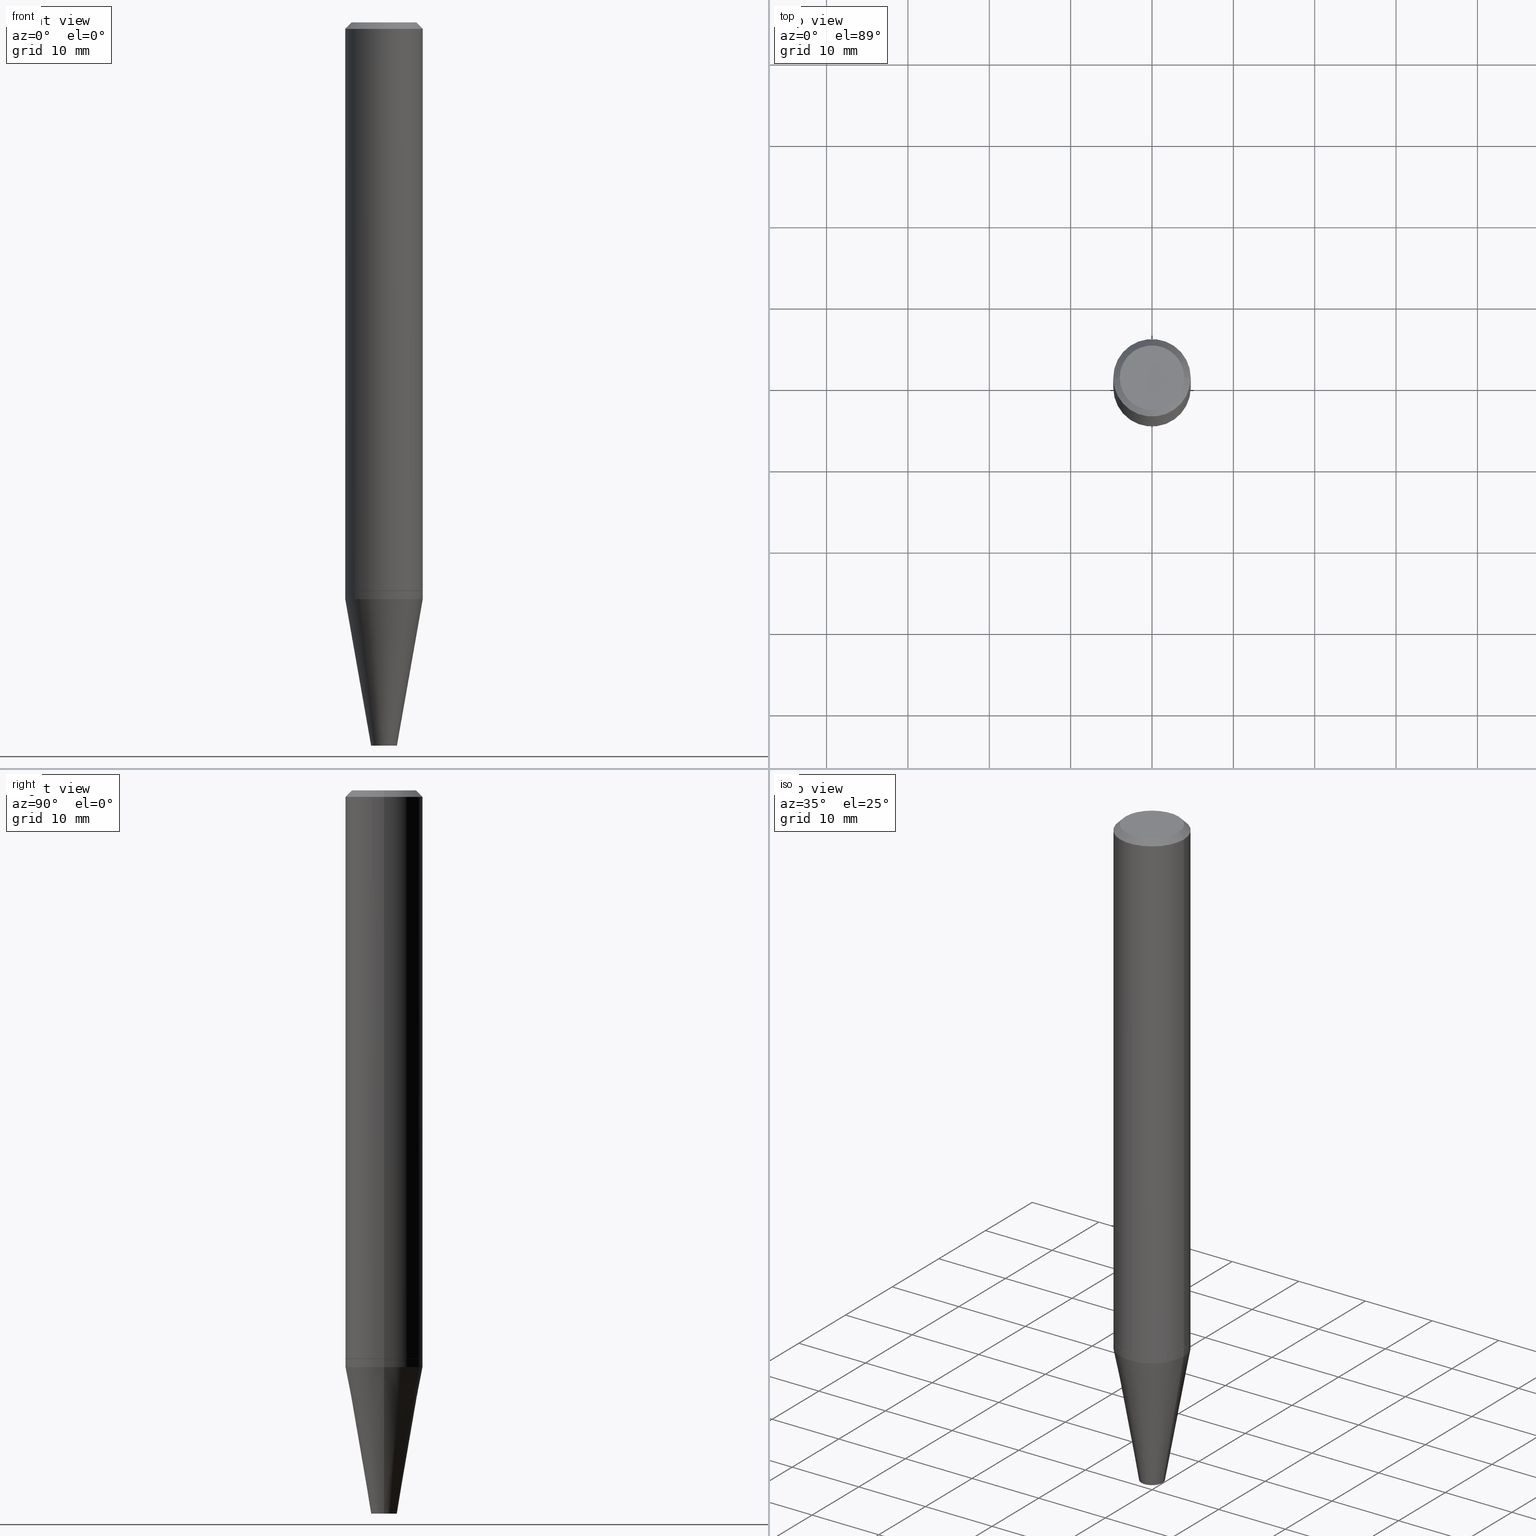
[diagram: canonical four-view strip — front | top / right | iso, engineering-drawing reading convention]
A machine part, canonical four-view strip (front | top / right | iso — engineering-drawing reading convention). The complete STEP part file that produces these views, byte-faithful:
ISO-10303-21;
HEADER;
FILE_DESCRIPTION (( 'STEP AP203' ),
    '1' );
FILE_NAME ('32328.STEP',
    '2024-03-04T15:06:21',
    ( '' ),
    ( '' ),
    'SwSTEP 2.0',
    'SolidWorks 2023',
    '' );
FILE_SCHEMA (( 'CONFIG_CONTROL_DESIGN' ));
ENDSEC;

DATA;
#1 = DIRECTION ( 'NONE',  ( -2.445468806185136597E-29, 3.491481338843145583E-15, 1.000000000000000000 ) ) ;
#2 = ADVANCED_FACE ( 'NONE', ( #217 ), #3, .T. ) ;
#3 = CYLINDRICAL_SURFACE ( 'NONE', #191, 0.1875000000000000278 ) ;
#4 = DIRECTION ( 'NONE',  ( 1.000000000000000000, -6.982962677686261189E-15, 0.000000000000000000 ) ) ;
#5 = VERTEX_POINT ( 'NONE', #61 ) ;
#6 = VECTOR ( 'NONE', #36, 39.37007874015748143 ) ;
#7 = CARTESIAN_POINT ( 'NONE',  ( 0.000000000000000000, 0.000000000000000000, 0.000000000000000000 ) ) ;
#8 = CARTESIAN_POINT ( 'NONE',  ( 8.559140821647976968E-29, -1.222018468595100934E-14, -3.500000000000000000 ) ) ;
#9 = AXIS2_PLACEMENT_3D ( 'NONE', #131, #195, #392 ) ;
#10 = VERTEX_POINT ( 'NONE', #388 ) ;
#11 = ORIENTED_EDGE ( 'NONE', *, *, #46, .T. ) ;
#12 = DIRECTION ( 'NONE',  ( 2.438088387897960049E-29, -3.491481338843145188E-15, -1.000000000000000000 ) ) ;
#13 = AXIS2_PLACEMENT_3D ( 'NONE', #8, #190, #187 ) ;
#14 = ORIENTED_EDGE ( 'NONE', *, *, #321, .F. ) ;
#15 = DIRECTION ( 'NONE',  ( 1.000000000000000000, -6.982962677686269077E-15, 0.000000000000000000 ) ) ;
#16 = PRODUCT_DEFINITION_FORMATION_WITH_SPECIFIED_SOURCE ( 'ANY', '', #246, .NOT_KNOWN. ) ;
#17 = DIRECTION ( 'NONE',  ( 1.000000000000000000, -6.982962677686256455E-15, 0.000000000000000000 ) ) ;
#18 = PERSON_AND_ORGANIZATION ( #372, #305 ) ;
#19 = PLANE ( 'NONE',  #297 ) ;
#20 = COORDINATED_UNIVERSAL_TIME_OFFSET ( 5, 0, .BEHIND. ) ;
#21 = EDGE_CURVE ( 'NONE', #136, #198, #73, .T. ) ;
#22 = AXIS2_PLACEMENT_3D ( 'NONE', #397, #150, #380 ) ;
#23 = SHAPE_DEFINITION_REPRESENTATION ( #178, #129 ) ;
#24 = DIRECTION ( 'NONE',  ( -2.445468806185136597E-29, 3.491481338843145583E-15, 1.000000000000000000 ) ) ;
#25 = LINE ( 'NONE', #281, #221 ) ;
#26 = VECTOR ( 'NONE', #48, 39.37007874015748143 ) ;
#27 = COORDINATED_UNIVERSAL_TIME_OFFSET ( 5, 0, .BEHIND. ) ;
#28 = DIRECTION ( 'NONE',  ( 2.445468806185136597E-29, -3.491481338843145583E-15, -1.000000000000000000 ) ) ;
#29 = LINE ( 'NONE', #379, #179 ) ;
#30 = ORIENTED_EDGE ( 'NONE', *, *, #40, .T. ) ;
#31 = AXIS2_PLACEMENT_3D ( 'NONE', #165, #256, #261 ) ;
#32 = CARTESIAN_POINT ( 'NONE',  ( 0.000000000000000000, 0.000000000000000000, 0.000000000000000000 ) ) ;
#33 = DIRECTION ( 'NONE',  ( 1.000000000000000000, -6.982962677686265922E-15, 0.000000000000000000 ) ) ;
#34 = LINE ( 'NONE', #325, #302 ) ;
#35 = EDGE_CURVE ( 'NONE', #391, #398, #348, .T. ) ;
#36 = DIRECTION ( 'NONE',  ( -2.445468806185136877E-29, 3.491481338843145188E-15, 1.000000000000000000 ) ) ;
#37 = CONICAL_SURFACE ( 'NONE', #93, 0.06250000000000005551, 0.1745329251994259256 ) ;
#38 = ORIENTED_EDGE ( 'NONE', *, *, #77, .T. ) ;
#39 = CARTESIAN_POINT ( 'NONE',  ( 7.642090019328561499E-31, -1.091087918388484350E-16, -0.03125000000000003469 ) ) ;
#40 = EDGE_CURVE ( 'NONE', #293, #352, #127, .T. ) ;
#41 = FACE_OUTER_BOUND ( 'NONE', #169, .T. ) ;
#42 = COORDINATED_UNIVERSAL_TIME_OFFSET ( 5, 0, .BEHIND. ) ;
#43 = CARTESIAN_POINT ( 'NONE',  ( 0.1875000000000000278, -1.105434335795262656E-14, -2.791089772547757253 ) ) ;
#44 = AXIS2_PLACEMENT_3D ( 'NONE', #101, #224, #330 ) ;
#45 = DESIGN_CONTEXT ( 'detailed design', #377, 'design' ) ;
#46 = EDGE_CURVE ( 'NONE', #5, #182, #215, .T. ) ;
#47 = DIRECTION ( 'NONE',  ( 2.438088387897960049E-29, -3.491481338843145188E-15, -1.000000000000000000 ) ) ;
#48 = DIRECTION ( 'NONE',  ( -2.445468806185136877E-29, 3.491481338843145188E-15, 1.000000000000000000 ) ) ;
#49 = ORIENTED_EDGE ( 'NONE', *, *, #250, .F. ) ;
#50 = CARTESIAN_POINT ( 'NONE',  ( -0.1875000000000000278, -8.341038139302364435E-15, -2.750000000000000000 ) ) ;
#51 = DIRECTION ( 'NONE',  ( -2.445468806185136597E-29, 3.491481338843145583E-15, 1.000000000000000000 ) ) ;
#52 = LOCAL_TIME ( 10, 6, 21.00000000000000000, #374 ) ;
#53 = DIRECTION ( 'NONE',  ( -2.445468806185136597E-29, 3.491481338843145583E-15, 1.000000000000000000 ) ) ;
#54 = EDGE_CURVE ( 'NONE', #65, #252, #34, .T. ) ;
#55 = DATE_TIME_ROLE ( 'classification_date' ) ;
#56 = APPROVAL_DATE_TIME ( #149, #362 ) ;
#57 = CARTESIAN_POINT ( 'NONE',  ( 0.1875000000000000278, -1.418414293905023320E-15, -0.03125000000000003469 ) ) ;
#58 = PERSON_AND_ORGANIZATION ( #372, #305 ) ;
#59 = CARTESIAN_POINT ( 'NONE',  ( 0.1875000000000000278, -1.309305502066175008E-15, 9.142831454617381013E-30 ) ) ;
#60 = CLOSED_SHELL ( 'NONE', ( #248, #237, #113, #378, #265, #175, #368, #332 ) ) ;
#61 = CARTESIAN_POINT ( 'NONE',  ( -0.1562500000000000833, 1.145642314307903329E-15, -7.821033771059395014E-30 ) ) ;
#62 = CARTESIAN_POINT ( 'NONE',  ( 4.364351673554776059E-16, 0.06249999999998784306, -3.500000000000000000 ) ) ;
#63 = CARTESIAN_POINT ( 'NONE',  ( 6.725039217009124520E-29, -9.601573681818649859E-15, -2.750000000000000000 ) ) ;
#64 = CC_DESIGN_DATE_AND_TIME_ASSIGNMENT ( #238, #406, ( #153 ) ) ;
#65 = VERTEX_POINT ( 'NONE', #385 ) ;
#66 = APPLICATION_CONTEXT ( 'configuration controlled 3d designs of mechanical parts and assemblies' ) ;
#67 = CARTESIAN_POINT ( 'NONE',  ( 7.642090019328561499E-31, -1.091087918388484350E-16, -0.03125000000000003469 ) ) ;
#68 = CIRCLE ( 'NONE', #357, 0.1875000000000000278 ) ;
#69 = EDGE_LOOP ( 'NONE', ( #303, #296, #14, #123 ) ) ;
#70 = CIRCLE ( 'NONE', #163, 0.1875000000000003886 ) ;
#71 = FACE_OUTER_BOUND ( 'NONE', #106, .T. ) ;
#72 = CC_DESIGN_PERSON_AND_ORGANIZATION_ASSIGNMENT ( #176, #274, ( #280 ) ) ;
#73 = CIRCLE ( 'NONE', #112, 0.1875000000000000278 ) ;
#74 = ORIENTED_EDGE ( 'NONE', *, *, #203, .F. ) ;
#75 = EDGE_LOOP ( 'NONE', ( #255, #202, #38, #260 ) ) ;
#76 = AXIS2_PLACEMENT_3D ( 'NONE', #310, #12, #214 ) ;
#77 = EDGE_CURVE ( 'NONE', #10, #198, #95, .T. ) ;
#78 = APPLICATION_PROTOCOL_DEFINITION ( 'international standard', 'config_control_design', 1994, #377 ) ;
#79 = ORIENTED_EDGE ( 'NONE', *, *, #77, .F. ) ;
#80 = CARTESIAN_POINT ( 'NONE',  ( 6.723816482606031719E-29, -9.599827941149227567E-15, -2.749499999999999833 ) ) ;
#81 = CARTESIAN_POINT ( 'NONE',  ( 0.1562500000000000833, -1.233702489286406538E-15, 8.128494228692102296E-30 ) ) ;
#82 = APPLICATION_PROTOCOL_DEFINITION ( 'international standard', 'config_control_design', 1994, #66 ) ;
#83 = EDGE_LOOP ( 'NONE', ( #184, #375 ) ) ;
#84 = CARTESIAN_POINT ( 'NONE',  ( 7.642090019328561499E-31, -1.091087918388484350E-16, -0.03125000000000003469 ) ) ;
#85 = CIRCLE ( 'NONE', #337, 0.1870000000000003604 ) ;
#86 = DIRECTION ( 'NONE',  ( -2.445468806185136597E-29, 3.491481338843145583E-15, 1.000000000000000000 ) ) ;
#87 = CONICAL_SURFACE ( 'NONE', #9, 0.1870000000000003604, 0.7853981633973118326 ) ;
#88 = CC_DESIGN_PERSON_AND_ORGANIZATION_ASSIGNMENT ( #58, #90, ( #153 ) ) ;
#89 = APPROVAL_ROLE ( '' ) ;
#90 = PERSON_AND_ORGANIZATION_ROLE ( 'creator' ) ;
#91 = CARTESIAN_POINT ( 'NONE',  ( -0.1875000000000000278, -3.522200736943847330E-15, -0.03125000000000003469 ) ) ;
#92 = DIRECTION ( 'NONE',  ( -0.7071067811865464625, 2.468850131082245228E-15, -0.7071067811865486830 ) ) ;
#93 = AXIS2_PLACEMENT_3D ( 'NONE', #349, #86, #240 ) ;
#94 = FACE_OUTER_BOUND ( 'NONE', #83, .T. ) ;
#95 = LINE ( 'NONE', #154, #6 ) ;
#96 = ADVANCED_FACE ( 'NONE', ( #290 ), #201, .T. ) ;
#97 = ORIENTED_EDGE ( 'NONE', *, *, #282, .F. ) ;
#98 = ORIENTED_EDGE ( 'NONE', *, *, #226, .T. ) ;
#99 = LINE ( 'NONE', #219, #133 ) ;
#100 = EDGE_LOOP ( 'NONE', ( #390, #109, #130, #339 ) ) ;
#101 = CARTESIAN_POINT ( 'NONE',  ( 0.000000000000000000, 0.000000000000000000, 0.000000000000000000 ) ) ;
#102 = CIRCLE ( 'NONE', #353, 0.1875000000000000278 ) ;
#103 = CYLINDRICAL_SURFACE ( 'NONE', #254, 0.1875000000000000278 ) ;
#104 = ORIENTED_EDGE ( 'NONE', *, *, #292, .T. ) ;
#105 = CARTESIAN_POINT ( 'NONE',  ( 0.000000000000000000, 0.000000000000000000, 0.000000000000000000 ) ) ;
#106 = EDGE_LOOP ( 'NONE', ( #233, #222, #134, #124 ) ) ;
#107 = ORIENTED_EDGE ( 'NONE', *, *, #118, .T. ) ;
#108 = DIRECTION ( 'NONE',  ( 2.438088387897960049E-29, -3.491481338843145188E-15, -1.000000000000000000 ) ) ;
#109 = ORIENTED_EDGE ( 'NONE', *, *, #203, .T. ) ;
#110 = CARTESIAN_POINT ( 'NONE',  ( 7.642090019328561499E-31, -1.091087918388484350E-16, -0.03125000000000003469 ) ) ;
#111 = PERSON_AND_ORGANIZATION_ROLE ( 'design_owner' ) ;
#112 = AXIS2_PLACEMENT_3D ( 'NONE', #67, #213, #33 ) ;
#113 = ADVANCED_FACE ( 'NONE', ( #126 ), #117, .T. ) ;
#114 = CARTESIAN_POINT ( 'NONE',  ( -0.06250000000000005551, -1.009443285121860521E-14, -3.500000000000000000 ) ) ;
#115 = CIRCLE ( 'NONE', #373, 0.1875000000000003886 ) ;
#116 = PERSON_AND_ORGANIZATION ( #372, #305 ) ;
#117 = CONICAL_SURFACE ( 'NONE', #239, 0.1870000000000003604, 0.7853981633973118326 ) ;
#118 = EDGE_CURVE ( 'NONE', #243, #136, #99, .T. ) ;
#119 = DIRECTION ( 'NONE',  ( 0.000000000000000000, 0.000000000000000000, 1.000000000000000000 ) ) ;
#120 = LOCAL_TIME ( 10, 6, 21.00000000000000000, #27 ) ;
#121 = APPROVAL_STATUS ( 'not_yet_approved' ) ;
#122 = CARTESIAN_POINT ( 'NONE',  ( 0.1870000000000003604, -1.090738770254598344E-14, -2.750000000000000000 ) ) ;
#123 = ORIENTED_EDGE ( 'NONE', *, *, #350, .F. ) ;
#124 = ORIENTED_EDGE ( 'NONE', *, *, #292, .F. ) ;
#125 = EDGE_CURVE ( 'NONE', #398, #391, #85, .T. ) ;
#126 = FACE_OUTER_BOUND ( 'NONE', #100, .T. ) ;
#127 = LINE ( 'NONE', #180, #229 ) ;
#128 = DIRECTION ( 'NONE',  ( 1.000000000000000000, -6.982962677686265922E-15, 4.876176775795935793E-29 ) ) ;
#129 = ADVANCED_BREP_SHAPE_REPRESENTATION ( '32328', ( #144, #286, #331 ), #410 ) ;
#130 = ORIENTED_EDGE ( 'NONE', *, *, #405, .F. ) ;
#131 = CARTESIAN_POINT ( 'NONE',  ( 6.725039217009124520E-29, -9.601573681818649859E-15, -2.750000000000000000 ) ) ;
#132 = EDGE_CURVE ( 'NONE', #198, #136, #68, .T. ) ;
#133 = VECTOR ( 'NONE', #356, 39.37007874015748143 ) ;
#134 = ORIENTED_EDGE ( 'NONE', *, *, #350, .T. ) ;
#135 = FACE_OUTER_BOUND ( 'NONE', #347, .T. ) ;
#136 = VERTEX_POINT ( 'NONE', #91 ) ;
#137 = DIRECTION ( 'NONE',  ( -2.445468806185136597E-29, 3.491481338843145583E-15, 1.000000000000000000 ) ) ;
#138 = ORIENTED_EDGE ( 'NONE', *, *, #308, .T. ) ;
#139 = CARTESIAN_POINT ( 'NONE',  ( 6.723816482606031719E-29, -9.599827941149227567E-15, -2.749499999999999833 ) ) ;
#140 = AXIS2_PLACEMENT_3D ( 'NONE', #84, #28, #170 ) ;
#141 =( CONVERSION_BASED_UNIT ( 'INCH', #306 ) LENGTH_UNIT ( ) NAMED_UNIT ( #236 ) );
#142 = PERSON_AND_ORGANIZATION ( #372, #305 ) ;
#143 = APPROVAL_PERSON_ORGANIZATION ( #116, #289, #208 ) ;
#144 = MANIFOLD_SOLID_BREP ( 'Body-Move/Copy2[1]', #278 ) ;
#145 = CONICAL_SURFACE ( 'NONE', #140, 0.1875000000000000278, 0.7853981633974467247 ) ;
#146 = DIRECTION ( 'NONE',  ( 1.000000000000000000, -6.982962677686265922E-15, 4.876176775795935793E-29 ) ) ;
#147 = APPROVAL_DATE_TIME ( #315, #289 ) ;
#148 = VECTOR ( 'NONE', #253, 39.37007874015748143 ) ;
#149 = DATE_AND_TIME ( #376, #52 ) ;
#150 = DIRECTION ( 'NONE',  ( -2.445468806185136597E-29, 3.491481338843145583E-15, 1.000000000000000000 ) ) ;
#151 = CONICAL_SURFACE ( 'NONE', #266, 0.1875000000000000278, 0.7853981633974467247 ) ;
#152 = DIRECTION ( 'NONE',  ( 1.000000000000000000, -6.982962677686266711E-15, 4.876176775795935232E-29 ) ) ;
#153 = PRODUCT_DEFINITION ( 'UNKNOWN', '', #16, #45 ) ;
#154 = CARTESIAN_POINT ( 'NONE',  ( 0.1875000000000001943, -1.309305502066176192E-15, 9.142831454617389421E-30 ) ) ;
#155 = CC_DESIGN_SECURITY_CLASSIFICATION ( #280, ( #16 ) ) ;
#156 = DIRECTION ( 'NONE',  ( 1.000000000000000000, -6.982962677686256455E-15, 0.000000000000000000 ) ) ;
#157 = ORIENTED_EDGE ( 'NONE', *, *, #218, .T. ) ;
#158 = AXIS2_PLACEMENT_3D ( 'NONE', #412, #351, #183 ) ;
#159 = CC_DESIGN_PERSON_AND_ORGANIZATION_ASSIGNMENT ( #343, #172, ( #16 ) ) ;
#160 = ORIENTED_EDGE ( 'NONE', *, *, #54, .T. ) ;
#161 = CALENDAR_DATE ( 2024, 4, 3 ) ;
#162 = EDGE_LOOP ( 'NONE', ( #223, #98, #288, #194 ) ) ;
#163 = AXIS2_PLACEMENT_3D ( 'NONE', #139, #53, #15 ) ;
#164 = APPROVAL ( #234, 'UNSPECIFIED' ) ;
#165 = CARTESIAN_POINT ( 'NONE',  ( 6.825522974027907843E-29, -9.745037855886453130E-15, -2.791089772547757253 ) ) ;
#166 = DATE_AND_TIME ( #161, #225 ) ;
#167 = CYLINDRICAL_SURFACE ( 'NONE', #413, 0.1875000000000001943 ) ;
#168 = CIRCLE ( 'NONE', #407, 0.06250000000000005551 ) ;
#169 = EDGE_LOOP ( 'NONE', ( #298, #107, #287, #79 ) ) ;
#170 = DIRECTION ( 'NONE',  ( -1.000000000000000000, 6.982962677686265922E-15, 0.000000000000000000 ) ) ;
#171 = DIRECTION ( 'NONE',  ( 1.000000000000000000, -6.982962677686261189E-15, 0.000000000000000000 ) ) ;
#172 = PERSON_AND_ORGANIZATION_ROLE ( 'creator' ) ;
#173 = PERSON_AND_ORGANIZATION_ROLE ( 'design_supplier' ) ;
#174 = EDGE_CURVE ( 'NONE', #65, #293, #168, .T. ) ;
#175 = ADVANCED_FACE ( 'NONE', ( #273 ), #276, .T. ) ;
#176 = PERSON_AND_ORGANIZATION ( #372, #305 ) ;
#177 = CARTESIAN_POINT ( 'NONE',  ( -0.1875000000000000278, -8.412770226336266860E-15, -2.791089772547757253 ) ) ;
#178 = PRODUCT_DEFINITION_SHAPE ( 'NONE', 'NONE',  #153 ) ;
#179 = VECTOR ( 'NONE', #92, 39.37007874015748143 ) ;
#180 = CARTESIAN_POINT ( 'NONE',  ( -0.06250000000000005551, -1.177609547610094673E-14, -3.500000000000000000 ) ) ;
#181 = CARTESIAN_POINT ( 'NONE',  ( 6.725039217009124520E-29, -9.601573681818649859E-15, -2.750000000000000000 ) ) ;
#182 = VERTEX_POINT ( 'NONE', #81 ) ;
#183 = DIRECTION ( 'NONE',  ( 1.000000000000000000, -6.982962677686261977E-15, 0.000000000000000000 ) ) ;
#184 = ORIENTED_EDGE ( 'NONE', *, *, #174, .F. ) ;
#185 = ORIENTED_EDGE ( 'NONE', *, *, #226, .F. ) ;
#186 = EDGE_CURVE ( 'NONE', #352, #329, #200, .T. ) ;
#187 = DIRECTION ( 'NONE',  ( 1.000000000000000000, -6.982962677686256455E-15, 0.000000000000000000 ) ) ;
#188 = DIRECTION ( 'NONE',  ( -0.1736481776669234200, 4.672282404182295014E-15, 0.9848077530122092416 ) ) ;
#189 = ORIENTED_EDGE ( 'NONE', *, *, #344, .F. ) ;
#190 = DIRECTION ( 'NONE',  ( -2.445468806185136597E-29, 3.491481338843145583E-15, 1.000000000000000000 ) ) ;
#191 = AXIS2_PLACEMENT_3D ( 'NONE', #216, #320, #359 ) ;
#192 = EDGE_CURVE ( 'NONE', #5, #136, #29, .T. ) ;
#193 = CC_DESIGN_APPROVAL ( #289, ( #280 ) ) ;
#194 = ORIENTED_EDGE ( 'NONE', *, *, #192, .F. ) ;
#195 = DIRECTION ( 'NONE',  ( -2.445468806185136597E-29, 3.491481338843145583E-15, 1.000000000000000000 ) ) ;
#196 = APPROVAL_PERSON_ORGANIZATION ( #230, #164, #227 ) ;
#197 = DIRECTION ( 'NONE',  ( 1.000000000000000000, -6.982962677686261977E-15, 0.000000000000000000 ) ) ;
#198 = VERTEX_POINT ( 'NONE', #57 ) ;
#199 = DIRECTION ( 'NONE',  ( 1.000000000000000000, -6.982962677686269077E-15, 0.000000000000000000 ) ) ;
#200 = LINE ( 'NONE', #336, #26 ) ;
#201 = CONICAL_SURFACE ( 'NONE', #279, 0.06250000000000005551, 0.1745329251994259256 ) ;
#202 = ORIENTED_EDGE ( 'NONE', *, *, #344, .T. ) ;
#203 = EDGE_CURVE ( 'NONE', #391, #243, #25, .T. ) ;
#204 = DIRECTION ( 'NONE',  ( -2.445468806185136597E-29, 3.491481338843145583E-15, 1.000000000000000000 ) ) ;
#205 = CIRCLE ( 'NONE', #44, 0.1562500000000000833 ) ;
#206 = PLANE ( 'NONE',  #76 ) ;
#207 = PRODUCT_RELATED_PRODUCT_CATEGORY ( 'detail', '', ( #246 ) ) ;
#208 = APPROVAL_ROLE ( '' ) ;
#209 = ADVANCED_FACE ( 'NONE', ( #71 ), #103, .T. ) ;
#210 = LOCAL_TIME ( 10, 6, 21.00000000000000000, #20 ) ;
#211 = DIRECTION ( 'NONE',  ( 1.000000000000000000, -6.982962677686265922E-15, 4.876176775795935793E-29 ) ) ;
#212 = DIRECTION ( 'NONE',  ( -0.7071067811864509833, 7.493145998870005484E-15, 0.7071067811866440511 ) ) ;
#213 = DIRECTION ( 'NONE',  ( -2.445468806185136597E-29, 3.491481338843145583E-15, 1.000000000000000000 ) ) ;
#214 = DIRECTION ( 'NONE',  ( -1.000000000000000000, 6.982962677686265922E-15, -4.876176775795935793E-29 ) ) ;
#215 = CIRCLE ( 'NONE', #291, 0.1562500000000000833 ) ;
#216 = CARTESIAN_POINT ( 'NONE',  ( 0.000000000000000000, 0.000000000000000000, 0.000000000000000000 ) ) ;
#217 = FACE_OUTER_BOUND ( 'NONE', #69, .T. ) ;
#218 = EDGE_CURVE ( 'NONE', #293, #65, #370, .T. ) ;
#219 = CARTESIAN_POINT ( 'NONE',  ( -0.1875000000000001943, 1.332267629550189229E-15, -9.223003294227957800E-30 ) ) ;
#220 = LINE ( 'NONE', #364, #148 ) ;
#221 = VECTOR ( 'NONE', #212, 39.37007874015748143 ) ;
#222 = ORIENTED_EDGE ( 'NONE', *, *, #282, .T. ) ;
#223 = ORIENTED_EDGE ( 'NONE', *, *, #271, .F. ) ;
#224 = DIRECTION ( 'NONE',  ( -2.445468806185136597E-29, 3.491481338843145583E-15, 1.000000000000000000 ) ) ;
#225 = LOCAL_TIME ( 10, 6, 21.00000000000000000, #42 ) ;
#226 = EDGE_CURVE ( 'NONE', #182, #198, #220, .T. ) ;
#227 = APPROVAL_ROLE ( '' ) ;
#228 = CARTESIAN_POINT ( 'NONE',  ( 6.825522974027907843E-29, -9.745037855886453130E-15, -2.791089772547757253 ) ) ;
#229 = VECTOR ( 'NONE', #188, 39.37007874015748143 ) ;
#230 = PERSON_AND_ORGANIZATION ( #372, #305 ) ;
#231 = CARTESIAN_POINT ( 'NONE',  ( 0.1870000000000003604, -1.090738770254598344E-14, -2.750000000000000000 ) ) ;
#232 = CARTESIAN_POINT ( 'NONE',  ( 6.725039217009124520E-29, -9.601573681818649859E-15, -2.750000000000000000 ) ) ;
#233 = ORIENTED_EDGE ( 'NONE', *, *, #186, .F. ) ;
#234 = APPROVAL_STATUS ( 'not_yet_approved' ) ;
#235 = PLANE ( 'NONE',  #319 ) ;
#236 = DIMENSIONAL_EXPONENTS ( 1.000000000000000000, 0.000000000000000000, 0.000000000000000000, 0.000000000000000000, 0.000000000000000000, 0.000000000000000000, 0.000000000000000000 ) ;
#237 = ADVANCED_FACE ( 'NONE', ( #41 ), #167, .T. ) ;
#238 = DATE_AND_TIME ( #342, #120 ) ;
#239 = AXIS2_PLACEMENT_3D ( 'NONE', #63, #1, #251 ) ;
#240 = DIRECTION ( 'NONE',  ( 1.000000000000000000, -6.982962677686256455E-15, 0.000000000000000000 ) ) ;
#241 = CIRCLE ( 'NONE', #257, 0.1875000000000000278 ) ;
#242 = CALENDAR_DATE ( 2024, 4, 3 ) ;
#243 = VERTEX_POINT ( 'NONE', #358 ) ;
#244 = CARTESIAN_POINT ( 'NONE',  ( -0.1870000000000003604, -8.270209538773150130E-15, -2.750000000000000000 ) ) ;
#245 = DIRECTION ( 'NONE',  ( 0.1736481776669234200, 2.225859148293818106E-15, 0.9848077530122092416 ) ) ;
#246 = PRODUCT ( '32328', '32328', '', ( #258 ) ) ;
#247 = ORIENTED_EDGE ( 'NONE', *, *, #35, .F. ) ;
#248 = ADVANCED_FACE ( 'NONE', ( #324 ), #151, .T. ) ;
#249 = VECTOR ( 'NONE', #268, 39.37007874015748143 ) ;
#250 = EDGE_CURVE ( 'NONE', #252, #352, #102, .T. ) ;
#251 = DIRECTION ( 'NONE',  ( 1.000000000000000000, -6.982962677686261977E-15, 0.000000000000000000 ) ) ;
#252 = VERTEX_POINT ( 'NONE', #43 ) ;
#253 = DIRECTION ( 'NONE',  ( 0.7071067811865464625, -7.319954787623252890E-15, -0.7071067811865486830 ) ) ;
#254 = AXIS2_PLACEMENT_3D ( 'NONE', #7, #137, #333 ) ;
#255 = ORIENTED_EDGE ( 'NONE', *, *, #118, .F. ) ;
#256 = DIRECTION ( 'NONE',  ( -2.445468806185136597E-29, 3.491481338843145583E-15, 1.000000000000000000 ) ) ;
#257 = AXIS2_PLACEMENT_3D ( 'NONE', #369, #367, #171 ) ;
#258 = MECHANICAL_CONTEXT ( 'NONE', #66, 'mechanical' ) ;
#259 = CARTESIAN_POINT ( 'NONE',  ( 0.1875000000000000278, -1.091087918388482487E-14, -2.750000000000000000 ) ) ;
#260 = ORIENTED_EDGE ( 'NONE', *, *, #21, .F. ) ;
#261 = DIRECTION ( 'NONE',  ( 1.000000000000000000, -6.982962677686261189E-15, 0.000000000000000000 ) ) ;
#262 =( NAMED_UNIT ( * ) SI_UNIT ( $, .STERADIAN. ) SOLID_ANGLE_UNIT ( ) );
#263 = VERTEX_POINT ( 'NONE', #259 ) ;
#264 = PLANE ( 'NONE',  #394 ) ;
#265 = ADVANCED_FACE ( 'NONE', ( #135 ), #87, .T. ) ;
#266 = AXIS2_PLACEMENT_3D ( 'NONE', #39, #326, #393 ) ;
#267 = ORIENTED_EDGE ( 'NONE', *, *, #54, .F. ) ;
#268 = DIRECTION ( 'NONE',  ( 0.7071067811864509833, -2.468850131081245741E-15, 0.7071067811866440511 ) ) ;
#269 = EDGE_LOOP ( 'NONE', ( #11, #327 ) ) ;
#270 =( NAMED_UNIT ( * ) PLANE_ANGLE_UNIT ( ) SI_UNIT ( $, .RADIAN. ) );
#271 = EDGE_CURVE ( 'NONE', #182, #5, #205, .T. ) ;
#272 = FACE_OUTER_BOUND ( 'NONE', #269, .T. ) ;
#273 = FACE_OUTER_BOUND ( 'NONE', #75, .T. ) ;
#274 = PERSON_AND_ORGANIZATION_ROLE ( 'classification_officer' ) ;
#275 = CIRCLE ( 'NONE', #22, 0.1875000000000000278 ) ;
#276 = CYLINDRICAL_SURFACE ( 'NONE', #317, 0.1875000000000001943 ) ;
#277 = CALENDAR_DATE ( 2024, 4, 3 ) ;
#278 = CLOSED_SHELL ( 'NONE', ( #2, #365, #300, #96, #209, #389 ) ) ;
#279 = AXIS2_PLACEMENT_3D ( 'NONE', #414, #354, #156 ) ;
#280 = SECURITY_CLASSIFICATION ( '', '', #283 ) ;
#281 = CARTESIAN_POINT ( 'NONE',  ( -0.1870000000000003604, -8.272858765947260543E-15, -2.750000000000000000 ) ) ;
#282 = EDGE_CURVE ( 'NONE', #352, #252, #313, .T. ) ;
#283 = SECURITY_CLASSIFICATION_LEVEL ( 'unclassified' ) ;
#284 = DIRECTION ( 'NONE',  ( -2.438088387897960049E-29, 3.491481338843145188E-15, 1.000000000000000000 ) ) ;
#285 = CC_DESIGN_APPROVAL ( #362, ( #16 ) ) ;
#286 = MANIFOLD_SOLID_BREP ( 'Body-Move/Copy2[2]', #60 ) ;
#287 = ORIENTED_EDGE ( 'NONE', *, *, #132, .F. ) ;
#288 = ORIENTED_EDGE ( 'NONE', *, *, #132, .T. ) ;
#289 = APPROVAL ( #345, 'UNSPECIFIED' ) ;
#290 = FACE_OUTER_BOUND ( 'NONE', #318, .T. ) ;
#291 = AXIS2_PLACEMENT_3D ( 'NONE', #383, #322, #152 ) ;
#292 = EDGE_CURVE ( 'NONE', #329, #263, #275, .T. ) ;
#293 = VERTEX_POINT ( 'NONE', #114 ) ;
#294 = EDGE_LOOP ( 'NONE', ( #185, #386, #360, #404 ) ) ;
#295 = ORIENTED_EDGE ( 'NONE', *, *, #125, .F. ) ;
#296 = ORIENTED_EDGE ( 'NONE', *, *, #186, .T. ) ;
#297 = AXIS2_PLACEMENT_3D ( 'NONE', #181, #284, #211 ) ;
#298 = ORIENTED_EDGE ( 'NONE', *, *, #405, .T. ) ;
#299 = ORIENTED_EDGE ( 'NONE', *, *, #40, .F. ) ;
#300 = ADVANCED_FACE ( 'NONE', ( #94 ), #235, .T. ) ;
#301 = DIRECTION ( 'NONE',  ( -2.445468806185136597E-29, 3.491481338843145583E-15, 1.000000000000000000 ) ) ;
#302 = VECTOR ( 'NONE', #245, 39.37007874015748143 ) ;
#303 = ORIENTED_EDGE ( 'NONE', *, *, #250, .T. ) ;
#304 = FACE_OUTER_BOUND ( 'NONE', #323, .T. ) ;
#305 = ORGANIZATION ( 'UNSPECIFIED', 'UNSPECIFIED', '' ) ;
#306 = LENGTH_MEASURE_WITH_UNIT ( LENGTH_MEASURE( 0.02539999999999999897 ), #384 );
#307 = DIRECTION ( 'NONE',  ( 1.000000000000000000, -6.982962677686265922E-15, 0.000000000000000000 ) ) ;
#308 = EDGE_CURVE ( 'NONE', #398, #10, #371, .T. ) ;
#309 = DATE_AND_TIME ( #242, #338 ) ;
#310 = CARTESIAN_POINT ( 'NONE',  ( 0.000000000000000000, 0.000000000000000000, 0.000000000000000000 ) ) ;
#311 = CARTESIAN_POINT ( 'NONE',  ( 8.559140821647976968E-29, -1.222018468595100934E-14, -3.500000000000000000 ) ) ;
#312 = COORDINATED_UNIVERSAL_TIME_OFFSET ( 5, 0, .BEHIND. ) ;
#313 = CIRCLE ( 'NONE', #31, 0.1875000000000000278 ) ;
#314 = DIRECTION ( 'NONE',  ( -2.445468806185136597E-29, 3.491481338843145583E-15, 1.000000000000000000 ) ) ;
#315 = DATE_AND_TIME ( #277, #210 ) ;
#316 = LINE ( 'NONE', #59, #403 ) ;
#317 = AXIS2_PLACEMENT_3D ( 'NONE', #402, #24, #146 ) ;
#318 = EDGE_LOOP ( 'NONE', ( #299, #157, #160, #97 ) ) ;
#319 = AXIS2_PLACEMENT_3D ( 'NONE', #62, #108, #399 ) ;
#320 = DIRECTION ( 'NONE',  ( -2.445468806185136597E-29, 3.491481338843145583E-15, 1.000000000000000000 ) ) ;
#321 = EDGE_CURVE ( 'NONE', #263, #329, #241, .T. ) ;
#322 = DIRECTION ( 'NONE',  ( -2.445468806185136597E-29, 3.491481338843145583E-15, 1.000000000000000000 ) ) ;
#323 = EDGE_LOOP ( 'NONE', ( #363, #104 ) ) ;
#324 = FACE_OUTER_BOUND ( 'NONE', #162, .T. ) ;
#325 = CARTESIAN_POINT ( 'NONE',  ( 0.06250000000000005551, -1.265661985330639943E-14, -3.500000000000000000 ) ) ;
#326 = DIRECTION ( 'NONE',  ( 2.445468806185136597E-29, -3.491481338843145583E-15, -1.000000000000000000 ) ) ;
#327 = ORIENTED_EDGE ( 'NONE', *, *, #271, .T. ) ;
#328 = DIRECTION ( 'NONE',  ( -2.445468806185136597E-29, 3.491481338843145583E-15, 1.000000000000000000 ) ) ;
#329 = VERTEX_POINT ( 'NONE', #50 ) ;
#330 = DIRECTION ( 'NONE',  ( 1.000000000000000000, -6.982962677686266711E-15, 4.876176775795935232E-29 ) ) ;
#331 = AXIS2_PLACEMENT_3D ( 'NONE', #32, #119, #366 ) ;
#332 = ADVANCED_FACE ( 'NONE', ( #272 ), #206, .F. ) ;
#333 = DIRECTION ( 'NONE',  ( 1.000000000000000000, -6.982962677686265922E-15, 4.876176775795935793E-29 ) ) ;
#334 = UNCERTAINTY_MEASURE_WITH_UNIT (LENGTH_MEASURE( 1.000000000000000082E-05 ), #141, 'distance_accuracy_value', 'NONE');
#335 = CARTESIAN_POINT ( 'NONE',  ( 1.309305502066242259E-15, 0.1874999999999904243, -2.750000000000000444 ) ) ;
#336 = CARTESIAN_POINT ( 'NONE',  ( -0.1875000000000000278, 1.332267629550188046E-15, -9.223003294227947991E-30 ) ) ;
#337 = AXIS2_PLACEMENT_3D ( 'NONE', #232, #395, #197 ) ;
#338 = LOCAL_TIME ( 10, 6, 21.00000000000000000, #312 ) ;
#339 = ORIENTED_EDGE ( 'NONE', *, *, #308, .F. ) ;
#340 = DIRECTION ( 'NONE',  ( -1.000000000000000000, 6.982962677686265922E-15, -4.876176775795935793E-29 ) ) ;
#341 = FACE_OUTER_BOUND ( 'NONE', #294, .T. ) ;
#342 = CALENDAR_DATE ( 2024, 4, 3 ) ;
#343 = PERSON_AND_ORGANIZATION ( #372, #305 ) ;
#344 = EDGE_CURVE ( 'NONE', #243, #10, #115, .T. ) ;
#345 = APPROVAL_STATUS ( 'not_yet_approved' ) ;
#346 = FACE_OUTER_BOUND ( 'NONE', #355, .T. ) ;
#347 = EDGE_LOOP ( 'NONE', ( #74, #387, #138, #189 ) ) ;
#348 = CIRCLE ( 'NONE', #158, 0.1870000000000003604 ) ;
#349 = CARTESIAN_POINT ( 'NONE',  ( 8.559140821647976968E-29, -1.222018468595100934E-14, -3.500000000000000000 ) ) ;
#350 = EDGE_CURVE ( 'NONE', #252, #263, #316, .T. ) ;
#351 = DIRECTION ( 'NONE',  ( -2.445468806185136597E-29, 3.491481338843145583E-15, 1.000000000000000000 ) ) ;
#352 = VERTEX_POINT ( 'NONE', #177 ) ;
#353 = AXIS2_PLACEMENT_3D ( 'NONE', #228, #328, #4 ) ;
#354 = DIRECTION ( 'NONE',  ( -2.445468806185136597E-29, 3.491481338843145583E-15, 1.000000000000000000 ) ) ;
#355 = EDGE_LOOP ( 'NONE', ( #401, #30, #49, #267 ) ) ;
#356 = DIRECTION ( 'NONE',  ( -2.445468806185136877E-29, 3.491481338843145188E-15, 1.000000000000000000 ) ) ;
#357 = AXIS2_PLACEMENT_3D ( 'NONE', #110, #51, #307 ) ;
#358 = CARTESIAN_POINT ( 'NONE',  ( -0.1875000000000003886, -8.267560311599038141E-15, -2.749499999999999833 ) ) ;
#359 = DIRECTION ( 'NONE',  ( 1.000000000000000000, -6.982962677686265922E-15, 4.876176775795935793E-29 ) ) ;
#360 = ORIENTED_EDGE ( 'NONE', *, *, #192, .T. ) ;
#361 = APPROVAL_PERSON_ORGANIZATION ( #18, #362, #89 ) ;
#362 = APPROVAL ( #121, 'UNSPECIFIED' ) ;
#363 = ORIENTED_EDGE ( 'NONE', *, *, #321, .T. ) ;
#364 = CARTESIAN_POINT ( 'NONE',  ( 0.1875000000000000278, -1.395452166421010677E-15, -0.03125000000000003469 ) ) ;
#365 = ADVANCED_FACE ( 'NONE', ( #346 ), #37, .T. ) ;
#366 = DIRECTION ( 'NONE',  ( 1.000000000000000000, 0.000000000000000000, 0.000000000000000000 ) ) ;
#367 = DIRECTION ( 'NONE',  ( -2.445468806185136597E-29, 3.491481338843145583E-15, 1.000000000000000000 ) ) ;
#368 = ADVANCED_FACE ( 'NONE', ( #341 ), #145, .T. ) ;
#369 = CARTESIAN_POINT ( 'NONE',  ( 6.725039217009124520E-29, -9.601573681818649859E-15, -2.750000000000000000 ) ) ;
#370 = CIRCLE ( 'NONE', #13, 0.06250000000000005551 ) ;
#371 = LINE ( 'NONE', #231, #249 ) ;
#372 = PERSON ( 'UNSPECIFIED', 'UNSPECIFIED', 'UNSPECIFIED', ('UNSPECIFIED'), ('UNSPECIFIED'), ('UNSPECIFIED') ) ;
#373 = AXIS2_PLACEMENT_3D ( 'NONE', #80, #204, #199 ) ;
#374 = COORDINATED_UNIVERSAL_TIME_OFFSET ( 5, 0, .BEHIND. ) ;
#375 = ORIENTED_EDGE ( 'NONE', *, *, #218, .F. ) ;
#376 = CALENDAR_DATE ( 2024, 4, 3 ) ;
#377 = APPLICATION_CONTEXT ( 'configuration controlled 3d designs of mechanical parts and assemblies' ) ;
#378 = ADVANCED_FACE ( 'NONE', ( #409 ), #19, .F. ) ;
#379 = CARTESIAN_POINT ( 'NONE',  ( -0.1875000000000000278, 1.200196710227326696E-15, -0.03125000000000003469 ) ) ;
#380 = DIRECTION ( 'NONE',  ( 1.000000000000000000, -6.982962677686261189E-15, 0.000000000000000000 ) ) ;
#381 = CC_DESIGN_APPROVAL ( #164, ( #153 ) ) ;
#382 = APPROVAL_DATE_TIME ( #166, #164 ) ;
#383 = CARTESIAN_POINT ( 'NONE',  ( 0.000000000000000000, 0.000000000000000000, 0.000000000000000000 ) ) ;
#384 =( LENGTH_UNIT ( ) NAMED_UNIT ( * ) SI_UNIT ( $, .METRE. ) );
#385 = CARTESIAN_POINT ( 'NONE',  ( 0.06250000000000005551, -1.265661985330639943E-14, -3.500000000000000000 ) ) ;
#386 = ORIENTED_EDGE ( 'NONE', *, *, #46, .F. ) ;
#387 = ORIENTED_EDGE ( 'NONE', *, *, #35, .T. ) ;
#388 = CARTESIAN_POINT ( 'NONE',  ( 0.1875000000000003886, -1.090913344321540415E-14, -2.749499999999999833 ) ) ;
#389 = ADVANCED_FACE ( 'NONE', ( #304 ), #264, .F. ) ;
#390 = ORIENTED_EDGE ( 'NONE', *, *, #125, .T. ) ;
#391 = VERTEX_POINT ( 'NONE', #244 ) ;
#392 = DIRECTION ( 'NONE',  ( 1.000000000000000000, -6.982962677686261977E-15, 0.000000000000000000 ) ) ;
#393 = DIRECTION ( 'NONE',  ( -1.000000000000000000, 6.982962677686265922E-15, 0.000000000000000000 ) ) ;
#394 = AXIS2_PLACEMENT_3D ( 'NONE', #335, #47, #340 ) ;
#395 = DIRECTION ( 'NONE',  ( -2.445468806185136597E-29, 3.491481338843145583E-15, 1.000000000000000000 ) ) ;
#396 = CC_DESIGN_PERSON_AND_ORGANIZATION_ASSIGNMENT ( #400, #111, ( #246 ) ) ;
#397 = CARTESIAN_POINT ( 'NONE',  ( 6.725039217009124520E-29, -9.601573681818649859E-15, -2.750000000000000000 ) ) ;
#398 = VERTEX_POINT ( 'NONE', #122 ) ;
#399 = DIRECTION ( 'NONE',  ( -1.000000000000000000, 6.982962677686265922E-15, -4.876176775795935793E-29 ) ) ;
#400 = PERSON_AND_ORGANIZATION ( #372, #305 ) ;
#401 = ORIENTED_EDGE ( 'NONE', *, *, #174, .T. ) ;
#402 = CARTESIAN_POINT ( 'NONE',  ( 0.000000000000000000, 0.000000000000000000, 0.000000000000000000 ) ) ;
#403 = VECTOR ( 'NONE', #408, 39.37007874015748143 ) ;
#404 = ORIENTED_EDGE ( 'NONE', *, *, #21, .T. ) ;
#405 = EDGE_CURVE ( 'NONE', #10, #243, #70, .T. ) ;
#406 = DATE_TIME_ROLE ( 'creation_date' ) ;
#407 = AXIS2_PLACEMENT_3D ( 'NONE', #311, #314, #17 ) ;
#408 = DIRECTION ( 'NONE',  ( -2.445468806185136877E-29, 3.491481338843145188E-15, 1.000000000000000000 ) ) ;
#409 = FACE_OUTER_BOUND ( 'NONE', #415, .T. ) ;
#410 =( GEOMETRIC_REPRESENTATION_CONTEXT ( 3 ) GLOBAL_UNCERTAINTY_ASSIGNED_CONTEXT ( ( #334 ) ) GLOBAL_UNIT_ASSIGNED_CONTEXT ( ( #141, #270, #262 ) ) REPRESENTATION_CONTEXT ( 'NONE', 'WORKASPACE' ) );
#411 = CC_DESIGN_DATE_AND_TIME_ASSIGNMENT ( #309, #55, ( #280 ) ) ;
#412 = CARTESIAN_POINT ( 'NONE',  ( 6.725039217009124520E-29, -9.601573681818649859E-15, -2.750000000000000000 ) ) ;
#413 = AXIS2_PLACEMENT_3D ( 'NONE', #105, #301, #128 ) ;
#414 = CARTESIAN_POINT ( 'NONE',  ( 8.559140821647976968E-29, -1.222018468595100934E-14, -3.500000000000000000 ) ) ;
#415 = EDGE_LOOP ( 'NONE', ( #295, #247 ) ) ;
#416 = CC_DESIGN_PERSON_AND_ORGANIZATION_ASSIGNMENT ( #142, #173, ( #16 ) ) ;
ENDSEC;
END-ISO-10303-21;
